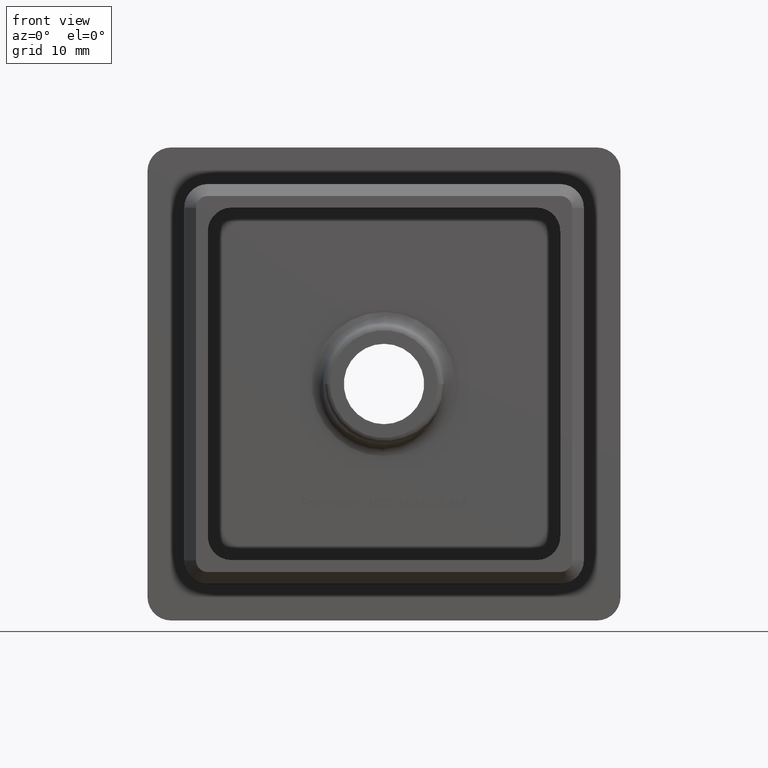
[diagram: clean part render]
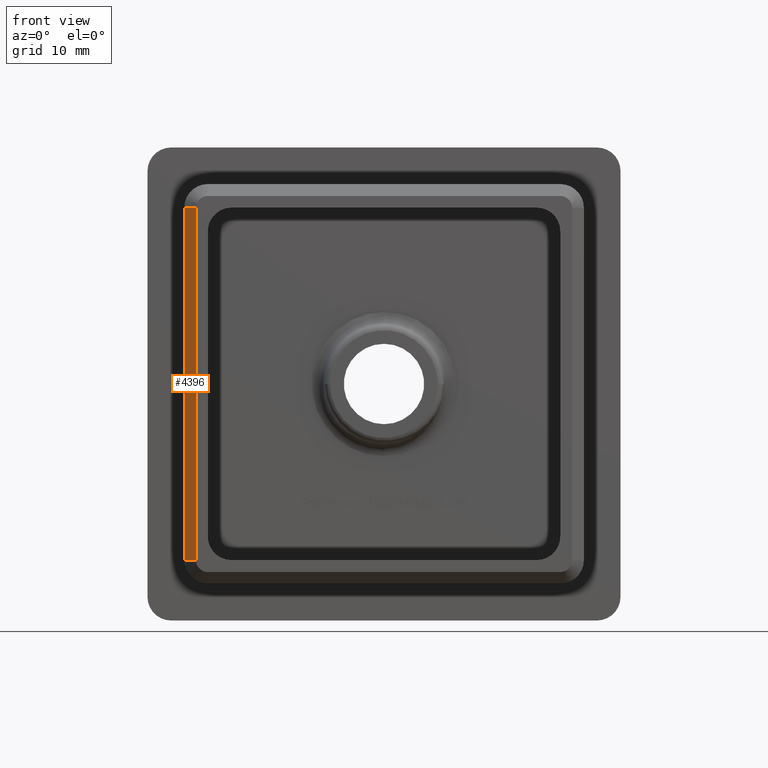
[diagram: same view with one face highlighted and labeled with its STEP entity id]
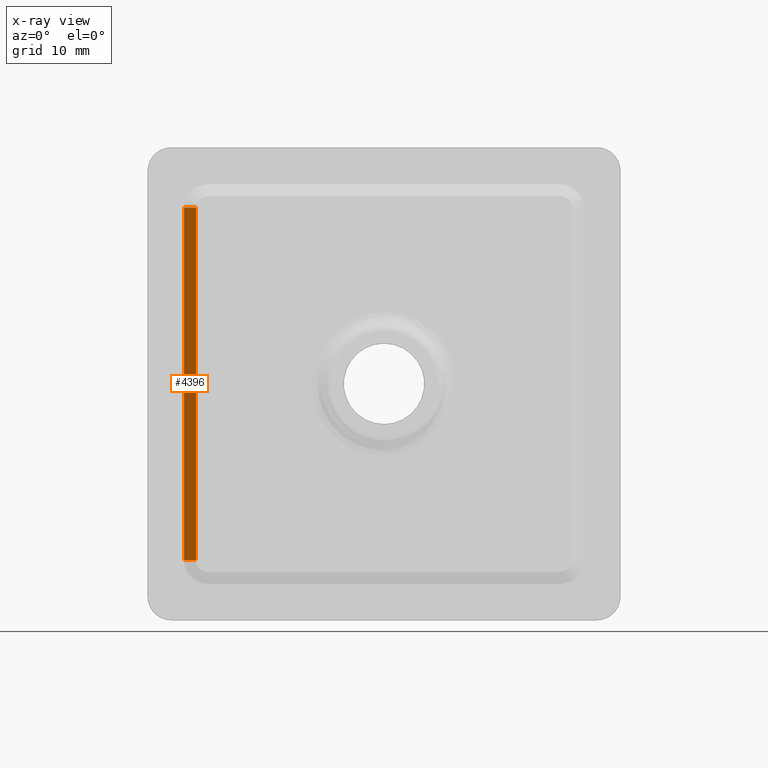
[diagram: x-ray of the same camera — body ghosted, the highlighted face saturated]
A machine part, front view. The second image highlights one B-rep face of the part: STEP entity #4396.
The next image is the same camera in x-ray: the body ghosted, the highlighted face saturated — about 0% of this face is hidden behind the body in this view.
In plain terms, the highlighted planar face has unit normal (-0.7071, -0.7071, 0).
Its self-contained STEP definition (entity closure, byte-faithful):
#495 = CARTESIAN_POINT ( 'NONE',  ( -16.89999999999999900, -18.99999999999999300, -14.89999999999999700 ) ) ;
#1928 = ORIENTED_EDGE ( 'NONE', *, *, #12728, .F. ) ;
#2589 = EDGE_LOOP ( 'NONE', ( #6131, #1928, #6074, #5699 ) ) ;
#3588 = EDGE_CURVE ( 'NONE', #7721, #18153, #7698, .T. ) ;
#4396 = ADVANCED_FACE ( 'NONE', ( #15630 ), #10305, .T. ) ;
#4655 = LINE ( 'NONE', #14680, #16162 ) ;
#4730 = DIRECTION ( 'NONE',  ( -0.0000000000000000000, 0.0000000000000000000, 1.000000000000000000 ) ) ;
#5699 = ORIENTED_EDGE ( 'NONE', *, *, #3588, .F. ) ;
#6074 = ORIENTED_EDGE ( 'NONE', *, *, #16100, .F. ) ;
#6120 = VECTOR ( 'NONE', #8500, 1000.000000000000000 ) ;
#6131 = ORIENTED_EDGE ( 'NONE', *, *, #17083, .F. ) ;
#7069 = CARTESIAN_POINT ( 'NONE',  ( -15.89999999999999700, -20.00000000000000000, -14.89999999999999900 ) ) ;
#7613 = VERTEX_POINT ( 'NONE', #14272 ) ;
#7650 = DIRECTION ( 'NONE',  ( 0.0000000000000000000, 0.0000000000000000000, -1.000000000000000000 ) ) ;
#7698 = LINE ( 'NONE', #10136, #11214 ) ;
#7721 = VERTEX_POINT ( 'NONE', #11605 ) ;
#8366 = DIRECTION ( 'NONE',  ( -0.7071067811865451300, 0.7071067811865500200, 1.226634733346693800E-015 ) ) ;
#8500 = DIRECTION ( 'NONE',  ( 0.0000000000000000000, 0.0000000000000000000, 1.000000000000000000 ) ) ;
#10076 = AXIS2_PLACEMENT_3D ( 'NONE', #11600, #13140, #4730 ) ;
#10136 = CARTESIAN_POINT ( 'NONE',  ( -15.89999999999999700, -20.00000000000000000, -14.89999999999999700 ) ) ;
#10305 = PLANE ( 'NONE',  #10076 ) ;
#11214 = VECTOR ( 'NONE', #7650, 1000.000000000000000 ) ;
#11600 = CARTESIAN_POINT ( 'NONE',  ( -15.89999999999999700, -20.00000000000000000, 0.0000000000000000000 ) ) ;
#11605 = CARTESIAN_POINT ( 'NONE',  ( -15.89999999999999700, -20.00000000000000000, 14.89999999999999900 ) ) ;
#12728 = EDGE_CURVE ( 'NONE', #14191, #7613, #18035, .T. ) ;
#13140 = DIRECTION ( 'NONE',  ( -0.7071067811865500200, -0.7071067811865451300, 0.0000000000000000000 ) ) ;
#14191 = VERTEX_POINT ( 'NONE', #495 ) ;
#14272 = CARTESIAN_POINT ( 'NONE',  ( -16.89999999999999900, -18.99999999999999300, 14.89999999999999900 ) ) ;
#14404 = LINE ( 'NONE', #16810, #15290 ) ;
#14680 = CARTESIAN_POINT ( 'NONE',  ( -16.89999999999999900, -18.99999999999999300, 14.89999999999999900 ) ) ;
#15290 = VECTOR ( 'NONE', #8366, 1000.000000000000100 ) ;
#15364 = CARTESIAN_POINT ( 'NONE',  ( -16.89999999999999900, -18.99999999999999300, 14.89999999999999900 ) ) ;
#15630 = FACE_OUTER_BOUND ( 'NONE', #2589, .T. ) ;
#16100 = EDGE_CURVE ( 'NONE', #18153, #14191, #14404, .T. ) ;
#16106 = DIRECTION ( 'NONE',  ( 0.7071067811865451300, -0.7071067811865500200, 0.0000000000000000000 ) ) ;
#16162 = VECTOR ( 'NONE', #16106, 1000.000000000000100 ) ;
#16810 = CARTESIAN_POINT ( 'NONE',  ( -15.89999999999999700, -20.00000000000000000, -14.89999999999999900 ) ) ;
#17083 = EDGE_CURVE ( 'NONE', #7613, #7721, #4655, .T. ) ;
#18035 = LINE ( 'NONE', #15364, #6120 ) ;
#18153 = VERTEX_POINT ( 'NONE', #7069 ) ;